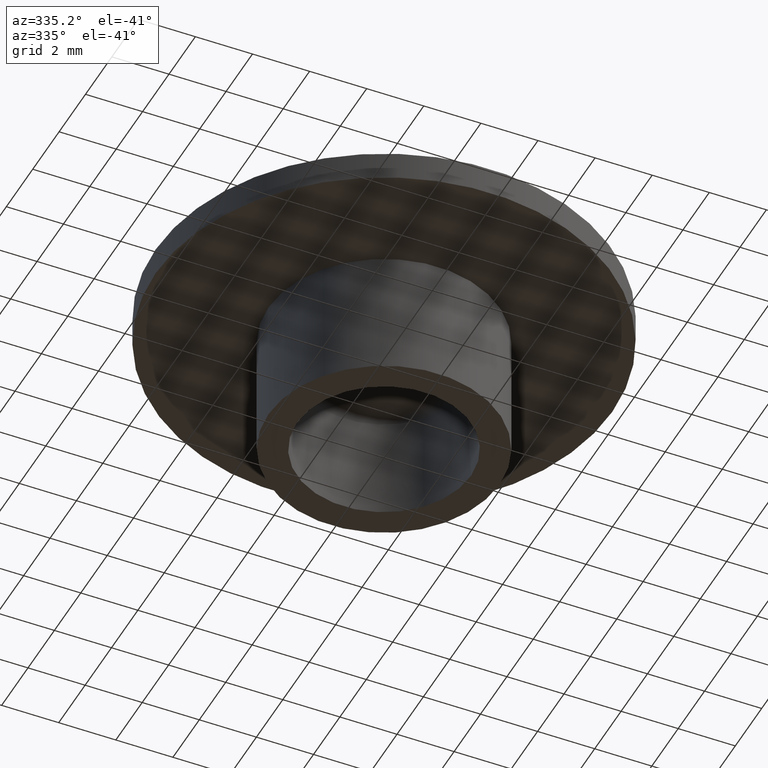
[diagram: clean part render]
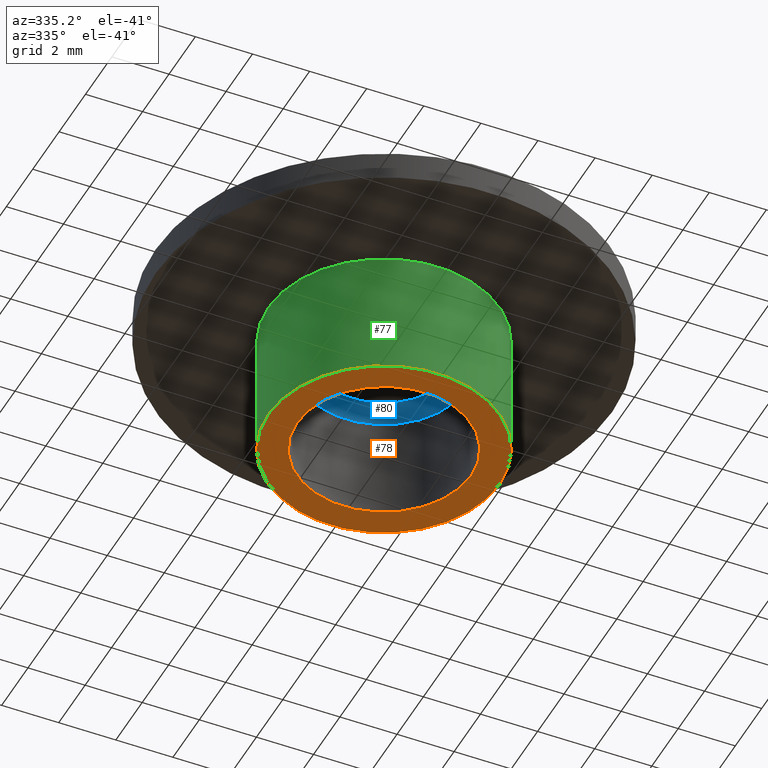
[diagram: same view with three faces highlighted in distinct colors, each labeled with its STEP entity id]
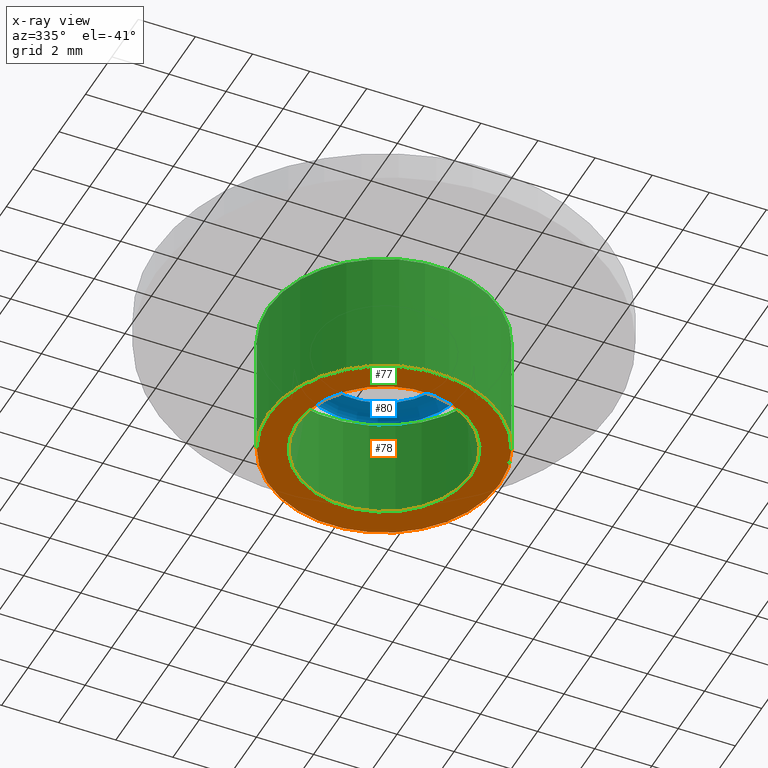
[diagram: x-ray of the same camera — body ghosted, the three highlighted faces saturated]
A machine part, auxiliary view with three faces highlighted in distinct colors.
The next image is the same camera in x-ray (body ghosted, the three faces saturated) — at least one of them is partly hidden behind the body in this view.
Their STEP definitions:

[orange] entity #78 — the highlighted planar face has unit normal (-0, 0, 1).
#78 = ADVANCED_FACE( '', ( #93, #94 ), #95, .F. );
#93 = FACE_OUTER_BOUND( '', #115, .T. );
#94 = FACE_BOUND( '', #116, .T. );
#95 = PLANE( '', #117 );
#115 = EDGE_LOOP( '', ( #143 ) );
#116 = EDGE_LOOP( '', ( #144 ) );
#117 = AXIS2_PLACEMENT_3D( '', #145, #146, #147 );
#143 = ORIENTED_EDGE( '', *, *, #169, .F. );
#144 = ORIENTED_EDGE( '', *, *, #170, .T. );
#145 = CARTESIAN_POINT( '', ( 1.59326504310453E-030, 3.05000000000000, -2.60208521396521E-014 ) );
#146 = DIRECTION( '', ( -6.12303176911189E-017, 0.000000000000000, 1.00000000000000 ) );
#147 = DIRECTION( '', ( 1.00000000000000, 0.000000000000000, 6.12303176911189E-017 ) );
#169 = EDGE_CURVE( '', #179, #179, #180, .T. );
#170 = EDGE_CURVE( '', #181, #181, #182, .T. );
#179 = VERTEX_POINT( '', #193 );
#180 = CIRCLE( '', #194, 4.05000000000000 );
#181 = VERTEX_POINT( '', #195 );
#182 = CIRCLE( '', #196, 3.05000000000000 );
#193 = CARTESIAN_POINT( '', ( 4.05000000000000, 0.000000000000000, -3.22146416530458E-015 ) );
#194 = AXIS2_PLACEMENT_3D( '', #210, #211, #212 );
#195 = CARTESIAN_POINT( '', ( 3.05000000000000, 0.000000000000000, -5.87938457142535E-014 ) );
#196 = AXIS2_PLACEMENT_3D( '', #213, #214, #215 );
#210 = CARTESIAN_POINT( '', ( 2.12435339080604E-031, 0.000000000000000, -3.46944695195361E-015 ) );
#211 = DIRECTION( '', ( -6.12303176911189E-017, 0.000000000000000, 1.00000000000000 ) );
#212 = DIRECTION( '', ( 1.00000000000000, 0.000000000000000, 6.12303176911189E-017 ) );
#213 = CARTESIAN_POINT( '', ( 3.61140076437026E-030, 0.000000000000000, -5.89805981832114E-014 ) );
#214 = DIRECTION( '', ( -6.12303176911189E-017, 0.000000000000000, 1.00000000000000 ) );
#215 = DIRECTION( '', ( 1.00000000000000, 0.000000000000000, 6.12303176911189E-017 ) );

[blue] entity #80 — the highlighted toroidal blend (fillet) surface has major radius 2.3659 mm and minor (blend) radius 0.5 mm.
#80 = ADVANCED_FACE( '', ( #99, #100 ), #101, .F. );
#99 = FACE_OUTER_BOUND( '', #121, .T. );
#100 = FACE_OUTER_BOUND( '', #122, .T. );
#101 = TOROIDAL_SURFACE( '', #123, 2.36588659951039, 0.500000000000000 );
#121 = EDGE_LOOP( '', ( #153 ) );
#122 = EDGE_LOOP( '', ( #154 ) );
#123 = AXIS2_PLACEMENT_3D( '', #155, #156, #157 );
#153 = ORIENTED_EDGE( '', *, *, #171, .F. );
#154 = ORIENTED_EDGE( '', *, *, #172, .T. );
#155 = CARTESIAN_POINT( '', ( -2.14306111918916E-016, 0.000000000000000, 3.50000000000000 ) );
#156 = DIRECTION( '', ( -6.12303176911189E-017, 0.000000000000000, 1.00000000000000 ) );
#157 = DIRECTION( '', ( 1.00000000000000, 0.000000000000000, 6.12303176911189E-017 ) );
#171 = EDGE_CURVE( '', #183, #183, #184, .T. );
#172 = EDGE_CURVE( '', #185, #185, #186, .T. );
#183 = VERTEX_POINT( '', #197 );
#184 = CIRCLE( '', #198, 2.86520136688768 );
#185 = VERTEX_POINT( '', #199 );
#186 = CIRCLE( '', #200, 2.36588659951040 );
#197 = CARTESIAN_POINT( '', ( 2.86520136688768, 0.000000000000000, 3.52616797812147 ) );
#198 = AXIS2_PLACEMENT_3D( '', #216, #217, #218 );
#199 = CARTESIAN_POINT( '', ( 2.36588659951040, 0.000000000000000, 4.00000000000000 ) );
#200 = AXIS2_PLACEMENT_3D( '', #219, #220, #221 );
#216 = CARTESIAN_POINT( '', ( -2.15908385532628E-016, 0.000000000000000, 3.52616797812147 ) );
#217 = DIRECTION( '', ( -6.12303176911189E-017, 0.000000000000000, 1.00000000000000 ) );
#218 = DIRECTION( '', ( 1.00000000000000, 0.000000000000000, 6.12303176911189E-017 ) );
#219 = CARTESIAN_POINT( '', ( -2.44921270764475E-016, 0.000000000000000, 4.00000000000000 ) );
#220 = DIRECTION( '', ( -6.12303176911189E-017, 0.000000000000000, 1.00000000000000 ) );
#221 = DIRECTION( '', ( 1.00000000000000, 0.000000000000000, 6.12303176911189E-017 ) );

[green] entity #77 — the highlighted cylindrical surface (bore or boss wall) has radius 4.05 mm, axis along (0, 0, -1).
#77 = ADVANCED_FACE( '', ( #90, #91 ), #92, .T. );
#90 = FACE_OUTER_BOUND( '', #112, .T. );
#91 = FACE_OUTER_BOUND( '', #113, .T. );
#92 = CYLINDRICAL_SURFACE( '', #114, 4.05000000000000 );
#112 = EDGE_LOOP( '', ( #138 ) );
#113 = EDGE_LOOP( '', ( #139 ) );
#114 = AXIS2_PLACEMENT_3D( '', #140, #141, #142 );
#138 = ORIENTED_EDGE( '', *, *, #168, .F. );
#139 = ORIENTED_EDGE( '', *, *, #169, .T. );
#140 = CARTESIAN_POINT( '', ( -9.46008408327786E-015, 0.000000000000000, 154.500000000000 ) );
#141 = DIRECTION( '', ( 6.12303176911189E-017, 0.000000000000000, -1.00000000000000 ) );
#142 = DIRECTION( '', ( 1.00000000000000, 0.000000000000000, 6.12303176911189E-017 ) );
#168 = EDGE_CURVE( '', #177, #177, #178, .T. );
#169 = EDGE_CURVE( '', #179, #179, #180, .T. );
#177 = VERTEX_POINT( '', #191 );
#178 = CIRCLE( '', #192, 4.05000000000000 );
#179 = VERTEX_POINT( '', #193 );
#180 = CIRCLE( '', #194, 4.05000000000000 );
#191 = CARTESIAN_POINT( '', ( 4.05000000000000, 0.000000000000000, 4.50000000000000 ) );
#192 = AXIS2_PLACEMENT_3D( '', #207, #208, #209 );
#193 = CARTESIAN_POINT( '', ( 4.05000000000000, 0.000000000000000, -3.22146416530458E-015 ) );
#194 = AXIS2_PLACEMENT_3D( '', #210, #211, #212 );
#207 = CARTESIAN_POINT( '', ( -2.75536429610035E-016, 0.000000000000000, 4.50000000000000 ) );
#208 = DIRECTION( '', ( -6.12303176911189E-017, 0.000000000000000, 1.00000000000000 ) );
#209 = DIRECTION( '', ( 1.00000000000000, 0.000000000000000, 6.12303176911189E-017 ) );
#210 = CARTESIAN_POINT( '', ( 2.12435339080604E-031, 0.000000000000000, -3.46944695195361E-015 ) );
#211 = DIRECTION( '', ( -6.12303176911189E-017, 0.000000000000000, 1.00000000000000 ) );
#212 = DIRECTION( '', ( 1.00000000000000, 0.000000000000000, 6.12303176911189E-017 ) );